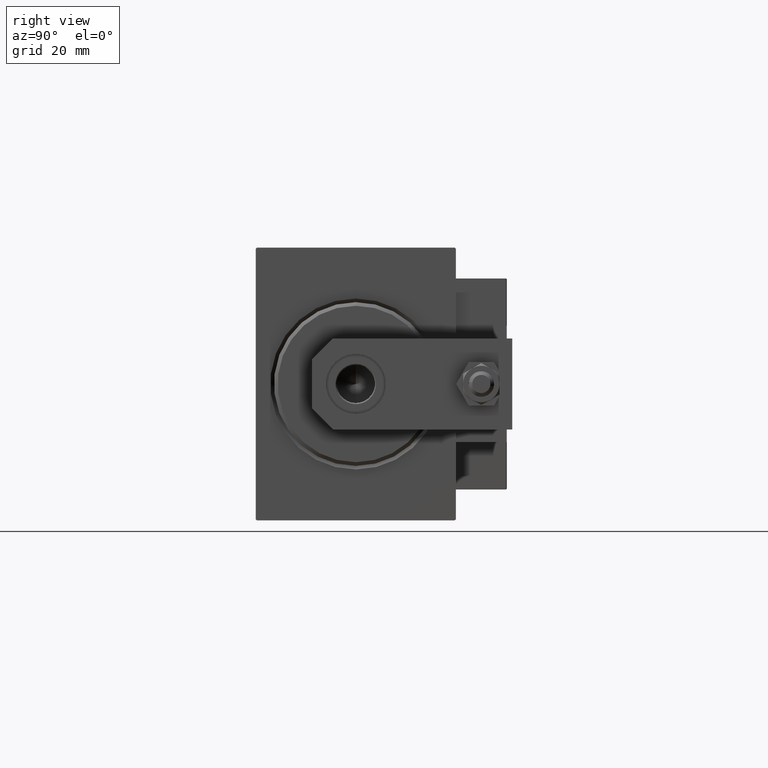
[diagram: clean part render]
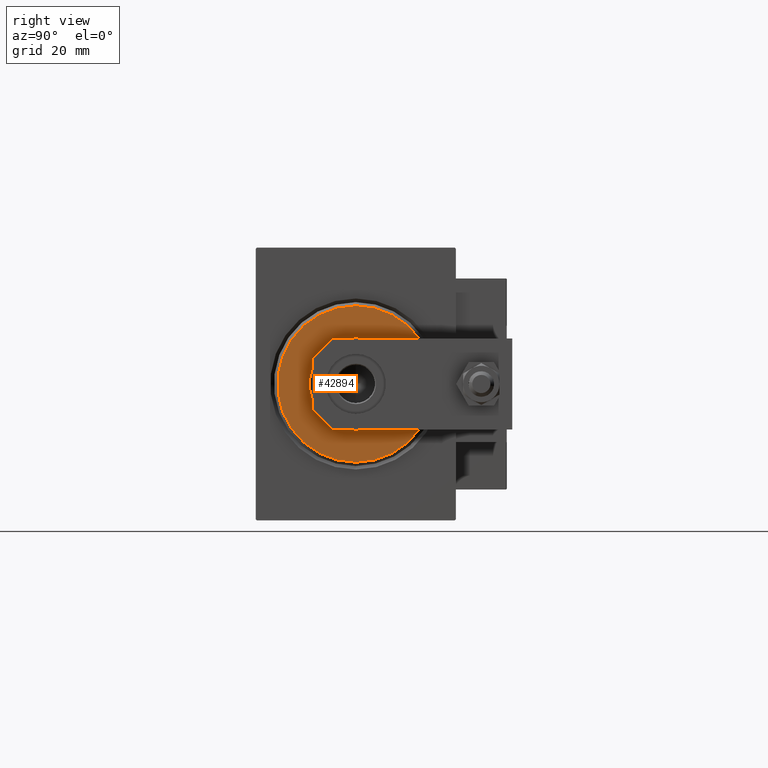
[diagram: same view with one face highlighted and labeled with its STEP entity id]
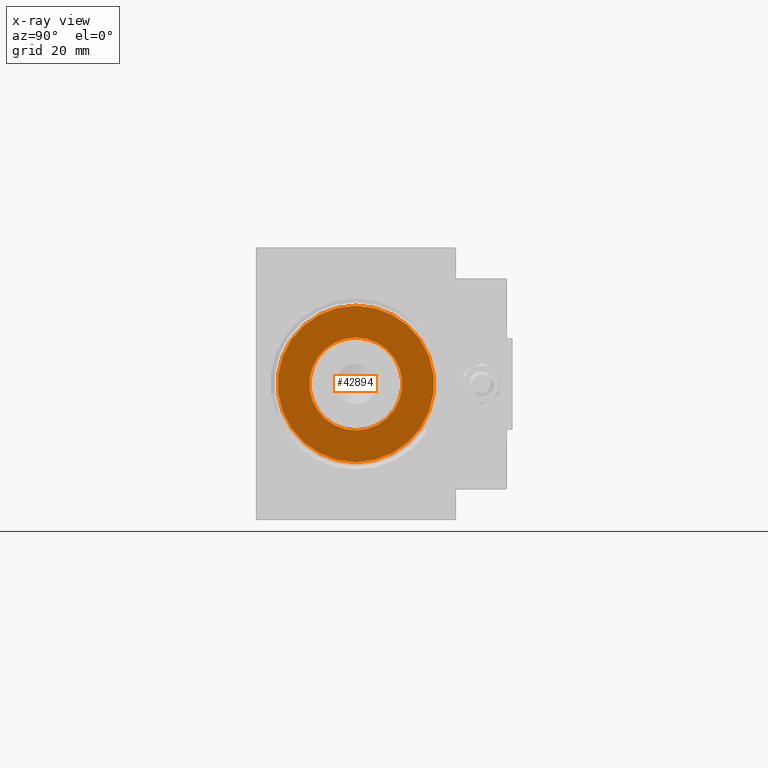
[diagram: x-ray of the same camera — body ghosted, the highlighted face saturated]
A machine part, right view. The second image highlights one B-rep face of the part: STEP entity #42894.
The next image is the same camera in x-ray: the body ghosted, the highlighted face saturated — about 0% of this face is hidden behind the body in this view.
In plain terms, the highlighted planar face has unit normal (1, 0, 0).
Its self-contained STEP definition (entity closure, byte-faithful):
#2227 = ORIENTED_EDGE ( 'NONE', *, *, #16701, .T. ) ;
#2394 = CIRCLE ( 'NONE', #22451, 21.49999999999998579 ) ;
#3210 = VERTEX_POINT ( 'NONE', #15368 ) ;
#4573 = DIRECTION ( 'NONE',  ( 0.000000000000000000, 0.000000000000000000, -1.000000000000000000 ) ) ;
#6714 = VERTEX_POINT ( 'NONE', #13904 ) ;
#6731 = DIRECTION ( 'NONE',  ( 0.000000000000000000, 0.000000000000000000, -1.000000000000000000 ) ) ;
#7861 = CARTESIAN_POINT ( 'NONE',  ( 3.000000000000000000, 0.000000000000000000, 0.000000000000000000 ) ) ;
#9867 = CIRCLE ( 'NONE', #21945, 21.49999999999998579 ) ;
#13904 = CARTESIAN_POINT ( 'NONE',  ( 3.000000000000000000, 0.000000000000000000, 21.49999999999998579 ) ) ;
#14212 = DIRECTION ( 'NONE',  ( 0.000000000000000000, 0.000000000000000000, -1.000000000000000000 ) ) ;
#15368 = CARTESIAN_POINT ( 'NONE',  ( 3.000000000000000000, 2.694222958124176415E-15, -21.49999999999998579 ) ) ;
#16701 = EDGE_CURVE ( 'NONE', #3210, #6714, #2394, .T. ) ;
#16762 = ORIENTED_EDGE ( 'NONE', *, *, #18976, .T. ) ;
#18976 = EDGE_CURVE ( 'NONE', #37860, #21142, #41723, .T. ) ;
#21142 = VERTEX_POINT ( 'NONE', #42158 ) ;
#21781 = ORIENTED_EDGE ( 'NONE', *, *, #40662, .T. ) ;
#21945 = AXIS2_PLACEMENT_3D ( 'NONE', #7861, #26728, #4573 ) ;
#22246 = PLANE ( 'NONE',  #22711 ) ;
#22451 = AXIS2_PLACEMENT_3D ( 'NONE', #29958, #37765, #26192 ) ;
#22711 = AXIS2_PLACEMENT_3D ( 'NONE', #45662, #45407, #14212 ) ;
#25531 = FACE_OUTER_BOUND ( 'NONE', #37157, .T. ) ;
#26192 = DIRECTION ( 'NONE',  ( 0.000000000000000000, 0.000000000000000000, -1.000000000000000000 ) ) ;
#26281 = FACE_BOUND ( 'NONE', #36981, .T. ) ;
#26728 = DIRECTION ( 'NONE',  ( 1.000000000000000000, -0.000000000000000000, 0.000000000000000000 ) ) ;
#28270 = CARTESIAN_POINT ( 'NONE',  ( 3.000000000000000000, 1.561424668912874914E-15, -12.75000000000000000 ) ) ;
#29074 = CIRCLE ( 'NONE', #33100, 12.75000000000000000 ) ;
#29958 = CARTESIAN_POINT ( 'NONE',  ( 3.000000000000000000, 0.000000000000000000, 0.000000000000000000 ) ) ;
#30367 = DIRECTION ( 'NONE',  ( -1.000000000000000000, 0.000000000000000000, -0.000000000000000000 ) ) ;
#33018 = ORIENTED_EDGE ( 'NONE', *, *, #43235, .T. ) ;
#33100 = AXIS2_PLACEMENT_3D ( 'NONE', #45004, #37455, #41481 ) ;
#36981 = EDGE_LOOP ( 'NONE', ( #21781, #16762 ) ) ;
#37157 = EDGE_LOOP ( 'NONE', ( #33018, #2227 ) ) ;
#37455 = DIRECTION ( 'NONE',  ( -1.000000000000000000, 0.000000000000000000, -0.000000000000000000 ) ) ;
#37765 = DIRECTION ( 'NONE',  ( 1.000000000000000000, -0.000000000000000000, 0.000000000000000000 ) ) ;
#37860 = VERTEX_POINT ( 'NONE', #28270 ) ;
#37918 = CARTESIAN_POINT ( 'NONE',  ( 3.000000000000000000, 0.000000000000000000, 0.000000000000000000 ) ) ;
#40662 = EDGE_CURVE ( 'NONE', #21142, #37860, #29074, .T. ) ;
#41481 = DIRECTION ( 'NONE',  ( 0.000000000000000000, 0.000000000000000000, -1.000000000000000000 ) ) ;
#41723 = CIRCLE ( 'NONE', #47331, 12.75000000000000000 ) ;
#42158 = CARTESIAN_POINT ( 'NONE',  ( 3.000000000000000000, 0.000000000000000000, 12.75000000000000000 ) ) ;
#42894 = ADVANCED_FACE ( 'NONE', ( #25531, #26281 ), #22246, .T. ) ;
#43235 = EDGE_CURVE ( 'NONE', #6714, #3210, #9867, .T. ) ;
#45004 = CARTESIAN_POINT ( 'NONE',  ( 3.000000000000000000, 0.000000000000000000, 0.000000000000000000 ) ) ;
#45407 = DIRECTION ( 'NONE',  ( 1.000000000000000000, -0.000000000000000000, 0.000000000000000000 ) ) ;
#45662 = CARTESIAN_POINT ( 'NONE',  ( 3.000000000000000000, 0.000000000000000000, 0.000000000000000000 ) ) ;
#47331 = AXIS2_PLACEMENT_3D ( 'NONE', #37918, #30367, #6731 ) ;